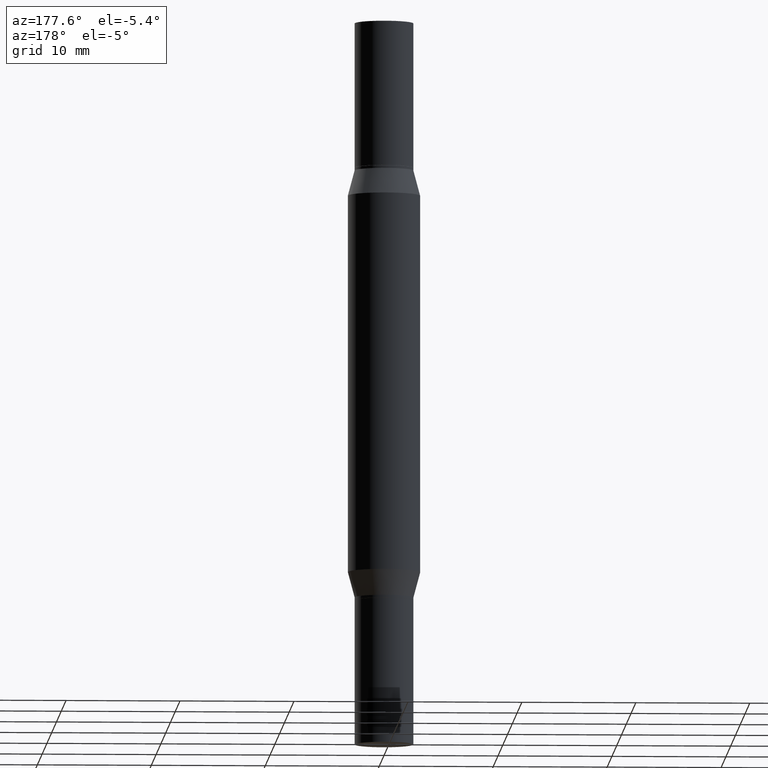
[diagram: clean part render]
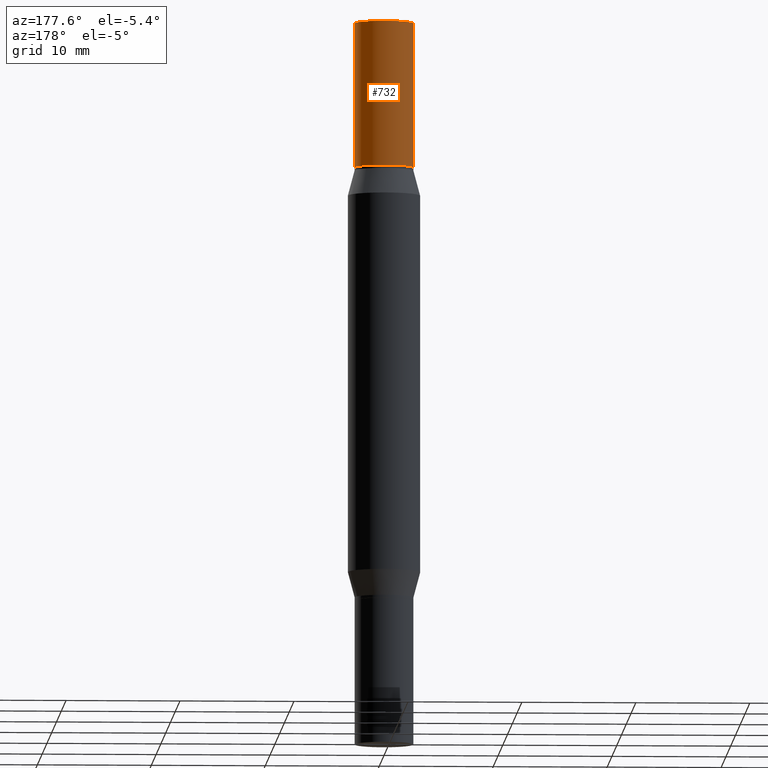
[diagram: same view with one face highlighted and labeled with its STEP entity id]
A machine part, auxiliary view. The second image highlights one B-rep face of the part: STEP entity #732.
In plain terms, the highlighted cylindrical surface (edge-blend (fillet) strip) has radius 2.5794 mm, axis along (-0, -0, -1).
Its self-contained STEP definition (entity closure, byte-faithful):
#17 = EDGE_CURVE ( 'NONE', #272, #300, #909, .T. ) ;
#19 = VERTEX_POINT ( 'NONE', #531 ) ;
#53 = ORIENTED_EDGE ( 'NONE', *, *, #17, .T. ) ;
#67 = DIRECTION ( 'NONE',  ( 1.000000000000000000, -6.982962677686266711E-15, 0.000000000000000000 ) ) ;
#133 = DIRECTION ( 'NONE',  ( 2.445468806185136597E-29, 3.491805094961124077E-15, 1.000000000000000000 ) ) ;
#135 = AXIS2_PLACEMENT_3D ( 'NONE', #737, #297, #358 ) ;
#137 = EDGE_CURVE ( 'NONE', #300, #361, #301, .T. ) ;
#142 = CARTESIAN_POINT ( 'NONE',  ( 6.113672015462842613E-29, 4.046951474745467748E-19, 5.463695987328526437E-16 ) ) ;
#151 = EDGE_CURVE ( 'NONE', #272, #19, #824, .T. ) ;
#251 = CARTESIAN_POINT ( 'NONE',  ( -0.1015500000000000708, -8.032424470581635484E-15, -2.499999999999999556 ) ) ;
#272 = VERTEX_POINT ( 'NONE', #663 ) ;
#286 = AXIS2_PLACEMENT_3D ( 'NONE', #142, #814, #67 ) ;
#297 = DIRECTION ( 'NONE',  ( -2.445468806185136597E-29, -3.491805094961124077E-15, -1.000000000000000000 ) ) ;
#300 = VERTEX_POINT ( 'NONE', #878 ) ;
#301 = CIRCLE ( 'NONE', #551, 0.1015500000000000708 ) ;
#310 = CARTESIAN_POINT ( 'NONE',  ( 0.1015500000000000708, -9.438227902174375885E-15, -2.499999999999999556 ) ) ;
#343 = CARTESIAN_POINT ( 'NONE',  ( 4.890937612370273194E-29, -1.745497852333086357E-15, -0.4999999999999996114 ) ) ;
#358 = DIRECTION ( 'NONE',  ( 1.000000000000000000, -6.982962677686269866E-15, 0.000000000000000000 ) ) ;
#361 = VERTEX_POINT ( 'NONE', #659 ) ;
#450 = DIRECTION ( 'NONE',  ( -2.445468806185136877E-29, -3.491805094961123683E-15, -1.000000000000000000 ) ) ;
#522 = VECTOR ( 'NONE', #450, 39.37007874015748143 ) ;
#531 = CARTESIAN_POINT ( 'NONE',  ( -0.1015500000000000708, -1.758630069191064586E-16, 5.463695987328557991E-16 ) ) ;
#551 = AXIS2_PLACEMENT_3D ( 'NONE', #343, #133, #964 ) ;
#566 = CYLINDRICAL_SURFACE ( 'NONE', #135, 0.1015500000000000708 ) ;
#616 = ORIENTED_EDGE ( 'NONE', *, *, #879, .F. ) ;
#648 = ORIENTED_EDGE ( 'NONE', *, *, #151, .F. ) ;
#659 = CARTESIAN_POINT ( 'NONE',  ( -0.1015500000000000708, -1.758630069191064586E-16, -0.4999999999999996114 ) ) ;
#663 = CARTESIAN_POINT ( 'NONE',  ( 0.1015500000000000708, -7.087151647715663820E-16, 5.463695987328526437E-16 ) ) ;
#704 = DIRECTION ( 'NONE',  ( -2.445468806185136877E-29, -3.491805094961123683E-15, -1.000000000000000000 ) ) ;
#732 = ADVANCED_FACE ( 'NONE', ( #943 ), #566, .T. ) ;
#737 = CARTESIAN_POINT ( 'NONE',  ( 0.000000000000000000, -8.729108042255335103E-15, -2.499999999999999556 ) ) ;
#814 = DIRECTION ( 'NONE',  ( 2.445468806185136597E-29, 3.491805094961124077E-15, 1.000000000000000000 ) ) ;
#824 = CIRCLE ( 'NONE', #286, 0.1015500000000000708 ) ;
#835 = ORIENTED_EDGE ( 'NONE', *, *, #137, .T. ) ;
#857 = LINE ( 'NONE', #251, #918 ) ;
#878 = CARTESIAN_POINT ( 'NONE',  ( 0.1015500000000000708, -2.454617712252127730E-15, -0.4999999999999996114 ) ) ;
#879 = EDGE_CURVE ( 'NONE', #19, #361, #857, .T. ) ;
#909 = LINE ( 'NONE', #310, #522 ) ;
#918 = VECTOR ( 'NONE', #704, 39.37007874015748143 ) ;
#943 = FACE_OUTER_BOUND ( 'NONE', #950, .T. ) ;
#950 = EDGE_LOOP ( 'NONE', ( #616, #648, #53, #835 ) ) ;
#964 = DIRECTION ( 'NONE',  ( 1.000000000000000000, -6.982962677686269866E-15, 0.000000000000000000 ) ) ;